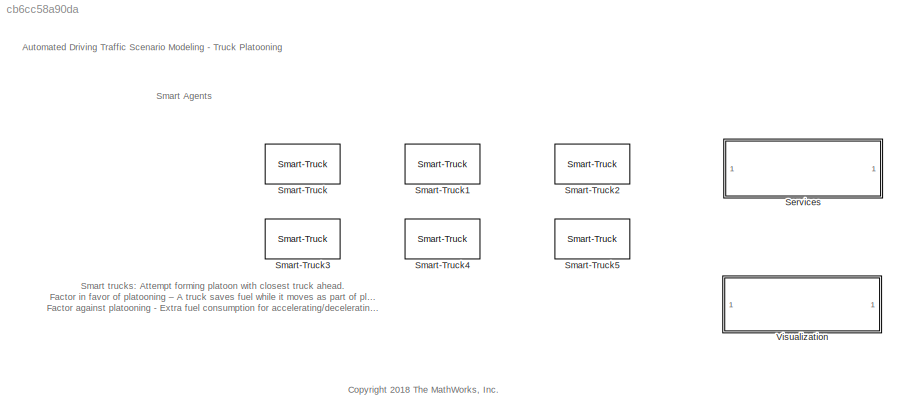
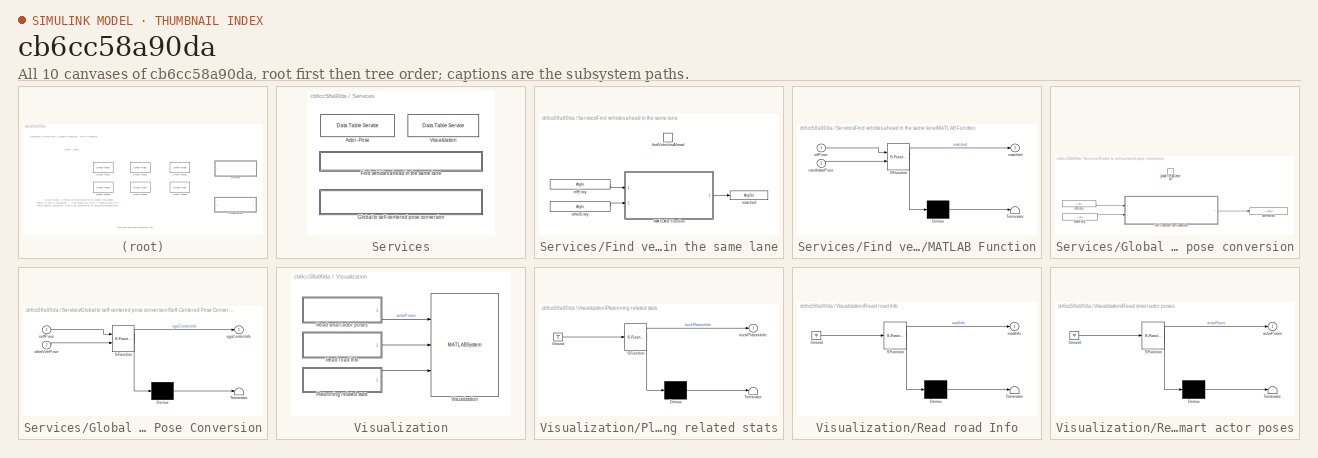
[diagram: thumbnail index - all 10 canvases of the model, root first then tree order]
MODEL slx_cb6cc58a90da
KIND model
CONFIG AbsTol = auto
CONFIG EnableMultiTasking = off
CONFIG FixedStep = auto
CONFIG InitFcn = clear actorCount;\nclear plotStats;\nmodelParams\n
CONFIG MaxStep = auto
CONFIG MinStep = auto
CONFIG PreLoadFcn = load 'tableStructure.mat'
CONFIG RelTol = 1e-3
CONFIG SampleTimeConstraint = Unconstrained
CONFIG Solver = VariableStepAuto
CONFIG SolverName = VariableStepAuto
CONFIG StartTime = 0.0
CONFIG StopFcn = delete 'roadInfo.mat'
CONFIG StopTime = simTime
BLOCK [SubSystem] Services
  Ports = []
  RequestExecContextInheritance = off
BLOCK [Reference] Services/Actor-Pose  REF=dataTableBlockslib/Data Table Service
  Ports = []
  SourceBlock = dataTableBlockslib/Data Table Service
  SourceType = DataTableService
BLOCK [SubSystem] Services/Find vehicles ahead in the same lane
  Ports = [0, 0, 0, 1]
  RequestExecContextInheritance = off
  TreatAsAtomicUnit = on
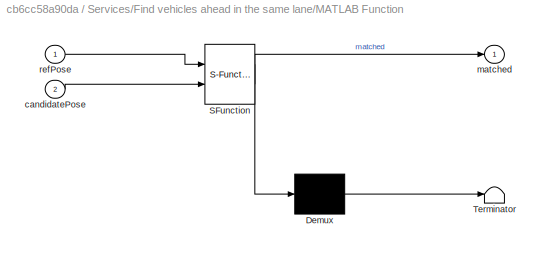
BLOCK [SubSystem] Services/Find vehicles ahead in the same lane/MATLAB Function
  ErrorFcn = Stateflow.Translate.translate
  PermitHierarchicalResolution = ExplicitOnly
  Ports = [2, 1]
  RequestExecContextInheritance = off
  SFBlockType = MATLAB Function
  TreatAsAtomicUnit = on
BLOCK [Demux] Services/Find vehicles ahead in the same lane/MATLAB Function/ Demux 
  Outputs = 1
  Ports = [1, 1]
BLOCK [S-Function] Services/Find vehicles ahead in the same lane/MATLAB Function/ SFunction 
  EnableBusSupport = off
  FunctionName = sf_sfun
  Parameters = initYPos,sensorRange
  PortCounts = [2 2]
  Ports = [2, 2]
  SFcnIsStateOwnerBlock = off
  SFunctionDeploymentMode = off
  Tag = Stateflow S-Function mTruckPlatoon 1
BLOCK [Terminator] Services/Find vehicles ahead in the same lane/MATLAB Function/ Terminator 
BLOCK [Inport] Services/Find vehicles ahead in the same lane/MATLAB Function/candidatePose
  IconDisplay = Port number
  Port = 2
BLOCK [Outport] Services/Find vehicles ahead in the same lane/MATLAB Function/matched
  IconDisplay = Port number
BLOCK [Inport] Services/Find vehicles ahead in the same lane/MATLAB Function/refPose
  IconDisplay = Port number
BLOCK [TriggerPort] Services/Find vehicles ahead in the same lane/findVehiclesAhead
  FunctionName = findVehiclesAhead
  FunctionVisibility = scoped
  IsSimulinkFunction = on
  Ports = []
  StatesWhenEnabling = held
  TriggerType = function-call
  VariantControl = (inherit)
BLOCK [ArgOut] Services/Find vehicles ahead in the same lane/matched
  ArgumentName = matched
  DisableCoverage = on
  OutDataTypeStr = boolean
BLOCK [ArgIn] Services/Find vehicles ahead in the same lane/otherEntry
  ArgumentName = otherEntry
  OutDataTypeStr = Bus: Vehicle
  Port = 2
BLOCK [ArgIn] Services/Find vehicles ahead in the same lane/refEntry
  ArgumentName = refEntry
  OutDataTypeStr = Bus: Vehicle
BLOCK [SubSystem] Services/Global to self-centered pose conversion
  Ports = [0, 0, 0, 1]
  RequestExecContextInheritance = off
  TreatAsAtomicUnit = on
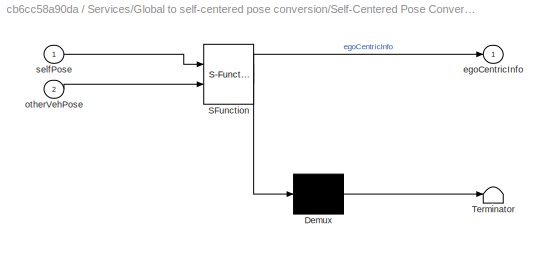
BLOCK [SubSystem] Services/Global to self-centered pose conversion/Self-Centered Pose Conversion
  ErrorFcn = Stateflow.Translate.translate
  PermitHierarchicalResolution = ExplicitOnly
  Ports = [2, 1]
  RequestExecContextInheritance = off
  SFBlockType = MATLAB Function
  TreatAsAtomicUnit = on
BLOCK [Demux] Services/Global to self-centered pose conversion/Self-Centered Pose Conversion/ Demux 
  Outputs = 1
  Ports = [1, 1]
BLOCK [S-Function] Services/Global to self-centered pose conversion/Self-Centered Pose Conversion/ SFunction 
  EnableBusSupport = off
  FunctionName = sf_sfun
  PortCounts = [2 2]
  Ports = [2, 2]
  SFcnIsStateOwnerBlock = off
  SFunctionDeploymentMode = off
  Tag = Stateflow S-Function mTruckPlatoon 52
BLOCK [Terminator] Services/Global to self-centered pose conversion/Self-Centered Pose Conversion/ Terminator 
BLOCK [Outport] Services/Global to self-centered pose conversion/Self-Centered Pose Conversion/egoCentricInfo
  IconDisplay = Port number
BLOCK [Inport] Services/Global to self-centered pose conversion/Self-Centered Pose Conversion/otherVehPose
  IconDisplay = Port number
  Port = 2
BLOCK [Inport] Services/Global to self-centered pose conversion/Self-Centered Pose Conversion/selfPose
  IconDisplay = Port number
BLOCK [TriggerPort] Services/Global to self-centered pose conversion/globalToEgoCentered
  FunctionName = globalToEgoCentered
  IsSimulinkFunction = on
  Ports = []
  StatesWhenEnabling = held
  TriggerType = function-call
  VariantControl = (inherit)
BLOCK [ArgIn] Services/Global to self-centered pose conversion/otherEntry
  ArgumentName = otherEntry
  OutDataTypeStr = Bus: Vehicle
  Port = 2
BLOCK [ArgIn] Services/Global to self-centered pose conversion/refEntry
  ArgumentName = refEntry
  DisableCoverage = on
  OutDataTypeStr = Bus: Vehicle
BLOCK [ArgOut] Services/Global to self-centered pose conversion/selfRefInfo
  ArgumentName = selfRefInfo
  DisableCoverage = on
  OutDataTypeStr = Bus: Vehicle
BLOCK [Reference] Services/Visualization   REF=dataTableBlockslib/Data Table Service
  Ports = []
  SourceBlock = dataTableBlockslib/Data Table Service
  SourceType = DataTableService
BLOCK [Reference] Smart-Truck  REF=smartTruckLib/Smart-Truck
  Ports = []
  SourceBlock = smartTruckLib/Smart-Truck
  SourceType = Truck
BLOCK [Reference] Smart-Truck1  REF=smartTruckLib/Smart-Truck
  Ports = []
  SourceBlock = smartTruckLib/Smart-Truck
  SourceType = Truck
BLOCK [Reference] Smart-Truck2  REF=smartTruckLib/Smart-Truck
  Ports = []
  SourceBlock = smartTruckLib/Smart-Truck
  SourceType = Truck
BLOCK [Reference] Smart-Truck3  REF=smartTruckLib/Smart-Truck
  Ports = []
  SourceBlock = smartTruckLib/Smart-Truck
  SourceType = Truck
BLOCK [Reference] Smart-Truck4  REF=smartTruckLib/Smart-Truck
  Ports = []
  SourceBlock = smartTruckLib/Smart-Truck
  SourceType = Truck
BLOCK [Reference] Smart-Truck5  REF=smartTruckLib/Smart-Truck
  Ports = []
  SourceBlock = smartTruckLib/Smart-Truck
  SourceType = Truck
BLOCK [SubSystem] Visualization
  Ports = []
  RequestExecContextInheritance = off
BLOCK [SubSystem] Visualization/Platooning related stats
  ErrorFcn = Stateflow.Translate.translate
  PermitHierarchicalResolution = ExplicitOnly
  Ports = [0, 1]
  RequestExecContextInheritance = off
  SFBlockType = MATLAB Function
  TreatAsAtomicUnit = on
BLOCK [Demux] Visualization/Platooning related stats/ Demux 
  Outputs = 1
  Ports = [1, 1]
BLOCK [Ground] Visualization/Platooning related stats/ Ground 
BLOCK [S-Function] Visualization/Platooning related stats/ SFunction 
  EnableBusSupport = off
  FunctionName = sf_sfun
  Parameters = numTrucks,truckIdBase
  PortCounts = [1 2]
  Ports = [1, 2]
  SFcnIsStateOwnerBlock = off
  SFunctionDeploymentMode = off
  Tag = Stateflow S-Function mTruckPlatoon 42
BLOCK [Terminator] Visualization/Platooning related stats/ Terminator 
BLOCK [Outport] Visualization/Platooning related stats/truckPlatoonInfo
  IconDisplay = Port number
BLOCK [SubSystem] Visualization/Read road Info
  ErrorFcn = Stateflow.Translate.translate
  PermitHierarchicalResolution = ExplicitOnly
  Ports = [0, 1]
  RequestExecContextInheritance = off
  SFBlockType = MATLAB Function
  TreatAsAtomicUnit = on
BLOCK [Demux] Visualization/Read road Info/ Demux 
  Outputs = 1
  Ports = [1, 1]
BLOCK [Ground] Visualization/Read road Info/ Ground 
BLOCK [S-Function] Visualization/Read road Info/ SFunction 
  EnableBusSupport = off
  FunctionName = sf_sfun
  Parameters = roadInfoFileNameU
  PortCounts = [1 2]
  Ports = [1, 2]
  SFcnIsStateOwnerBlock = off
  SFunctionDeploymentMode = off
  Tag = Stateflow S-Function mTruckPlatoon 2
BLOCK [Terminator] Visualization/Read road Info/ Terminator 
BLOCK [Outport] Visualization/Read road Info/roadInfo
  IconDisplay = Port number
BLOCK [SubSystem] Visualization/Read smart actor poses
  ErrorFcn = Stateflow.Translate.translate
  PermitHierarchicalResolution = ExplicitOnly
  Ports = [0, 1]
  RequestExecContextInheritance = off
  SFBlockType = MATLAB Function
  TreatAsAtomicUnit = on
BLOCK [Demux] Visualization/Read smart actor poses/ Demux 
  Outputs = 1
  Ports = [1, 1]
BLOCK [Ground] Visualization/Read smart actor poses/ Ground 
BLOCK [S-Function] Visualization/Read smart actor poses/ SFunction 
  EnableBusSupport = off
  FunctionName = sf_sfun
  Parameters = initYPos,numTrucks,truckIdBase,truckVelocity,truckXPosition
  PortCounts = [1 2]
  Ports = [1, 2]
  SFcnIsStateOwnerBlock = off
  SFunctionDeploymentMode = off
  Tag = Stateflow S-Function mTruckPlatoon 40
BLOCK [Terminator] Visualization/Read smart actor poses/ Terminator 
BLOCK [Outport] Visualization/Read smart actor poses/actorPoses
  IconDisplay = Port number
BLOCK [MATLABSystem] Visualization/Visualization
  MaskDisplay = disp('Visualizer');\nport_label('input',1,'Actors');\nport_label('input',2,'Roads');\nport_label('input',3,'Statistics');
  MaskType = visualizer
  Ports = [3]
  System = visualizer
ANNOTATION (root): Smart trucks : Attempt forming platoon with closest truck ahead. Factor in favor of platooning – A truck saves fuel while it moves as part of platoon. Factor against platooning - Extra fuel consumption for accelerating/decelerating (for coming closer or matching speed) to form a platoon with the truck ahead.
ANNOTATION (root): Automated Driving Traffic Scenario Modeling - Truck Platooning
ANNOTATION (root): <copyright redacted>
ANNOTATION (root): Smart Agents
LINE Services/Find vehicles ahead in the same lane/MATLAB Function:1 -> Services/Find vehicles ahead in the same lane/matched:1
LINE Services/Find vehicles ahead in the same lane/otherEntry:1 -> Services/Find vehicles ahead in the same lane/MATLAB Function:2
LINE Services/Find vehicles ahead in the same lane/refEntry:1 -> Services/Find vehicles ahead in the same lane/MATLAB Function:1
LINE Services/Global to self-centered pose conversion/Self-Centered Pose Conversion:1 -> Services/Global to self-centered pose conversion/selfRefInfo:1
LINE Services/Global to self-centered pose conversion/otherEntry:1 -> Services/Global to self-centered pose conversion/Self-Centered Pose Conversion:2
LINE Services/Global to self-centered pose conversion/refEntry:1 -> Services/Global to self-centered pose conversion/Self-Centered Pose Conversion:1
LINE Visualization/Platooning related stats:1 -> Visualization/Visualization:3
LINE Visualization/Read road Info:1 -> Visualization/Visualization:2
LINE Visualization/Read smart actor poses:1 -> Visualization/Visualization:1
CHART Services/Find vehicles ahead in the same lane/MATLAB Function states=1 transitions=1
  STATE_LABEL 'eML_blk_kernel()'
  STATE_LABEL 'SCRIPT:\nfunction matched = findVehiclesAheadSameLane(refPose, candidatePose, sensorRange, initYPos)\n% For any vehicle, get the vehicles ahead. Query is assumed\n% to called for a vehicle moving in +ve X direction\n% refPose - Query-Calling vehicle\n% candidatePose - Actor to be processed as candidate for matching the query criteria.\n\nif ((candidatePose.Position(1) - refPose.Position(1)) > 0 && ...\n  ...<+161ch>'
CHART Visualization/Read road Info states=1 transitions=1
  STATE_LABEL 'eML_blk_kernel()'
  STATE_LABEL 'SCRIPT:\nfunction roadInfo = getRoadBoundaries(roadInfoFileNameU)\n% Read the road boundaries information\n\nroadData = load(char(roadInfoFileNameU));\nroadInfo = roadData.RoadBoundaries;'
CHART Visualization/Read smart actor poses states=1 transitions=1
  STATE_LABEL 'eML_blk_kernel()'
  STATE_LABEL "SCRIPT:\nfunction actorPoses = getTruckPose(truckIdBase, numTrucks, truckXPosition, ...\n                                      truckVelocity, initYPos)\n% Read poses of trucks (from data table)\n\nactorStruct = struct('ActorID', 0, 'Position', [0 0 0], ...\n    'Velocity', [0 0 0], 'Roll', 0, 'Pitch', 0, 'Yaw', 0, ...\n    'AngularVelocity', [0 0 0]);\n% Create an actor structure array for all required ac...<+772ch>"
CHART Visualization/Platooning related stats states=1 transitions=1
  STATE_LABEL 'eML_blk_kernel()'
  STATE_LABEL "SCRIPT:\nfunction truckPlatoonInfo = getPlatoonStats(truckIdBase, numTrucks)\n% Get platooning related stats for sending to visulizer.\n\nactorStruct = struct('ActorID', 0, 'VehicleAheadID', 0, 'PlatoonStatus', 0, 'FuelSavings', 0);\ntruckPlatoonInfo = repmat(actorStruct, [numTrucks 1]);\nfor i = 1 : numTrucks % For all the trucks.\n    % Getting the key corresponding to the actorId from the data table.\n...<+620ch>"
CHART Services/Global to self-centered pose conversion/Self-Centered Pose Conversion states=1 transitions=1
  STATE_LABEL 'eML_blk_kernel()'
  STATE_LABEL 'SCRIPT:\nfunction egoCentricInfo = globalToEgoCenteredConversion(selfPose, otherVehPose)\n% Convert global-coordinate pose of another vehicle to self-centered pose.\n\negoCentricInfo.ActorID = otherVehPose.ActorID;\negoCentricInfo.Position = otherVehPose.Position - selfPose.Position;\negoCentricInfo.Velocity = otherVehPose.Velocity - selfPose.Velocity;\negoCentricInfo.Roll = otherVehPose.Roll - selfPose....<+209ch>'
